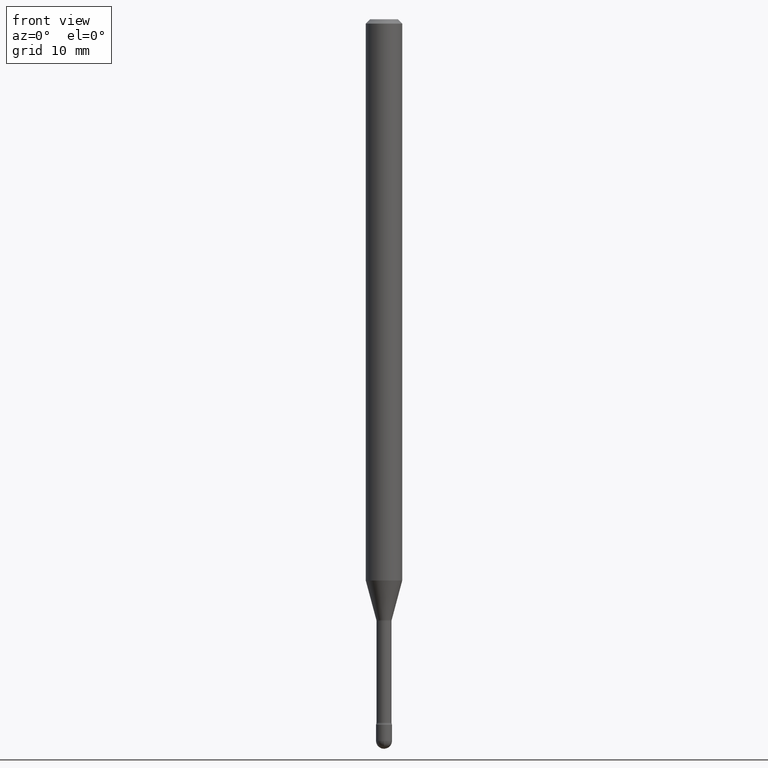
[diagram: clean part render]
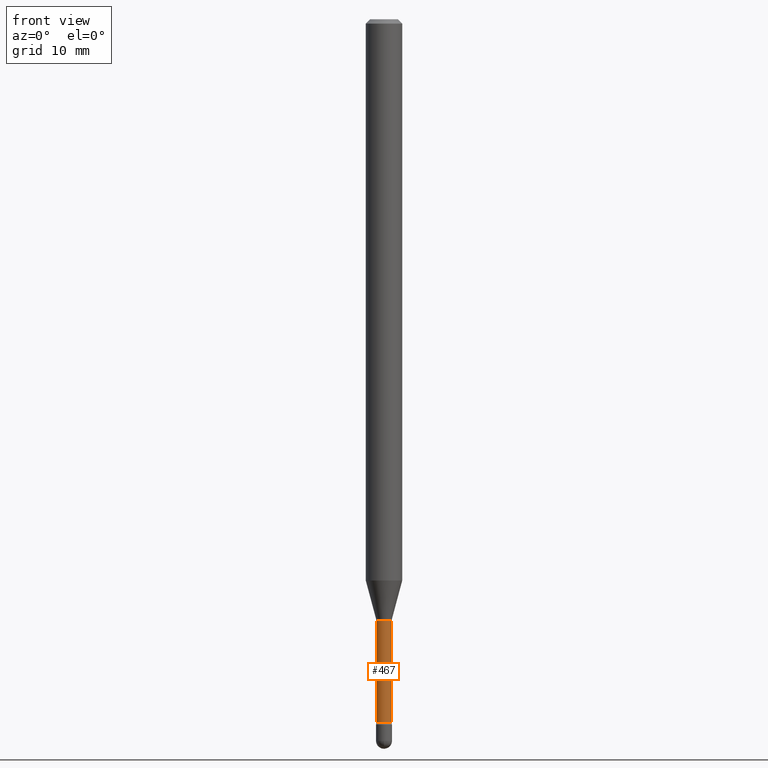
[diagram: same view with one face highlighted and labeled with its STEP entity id]
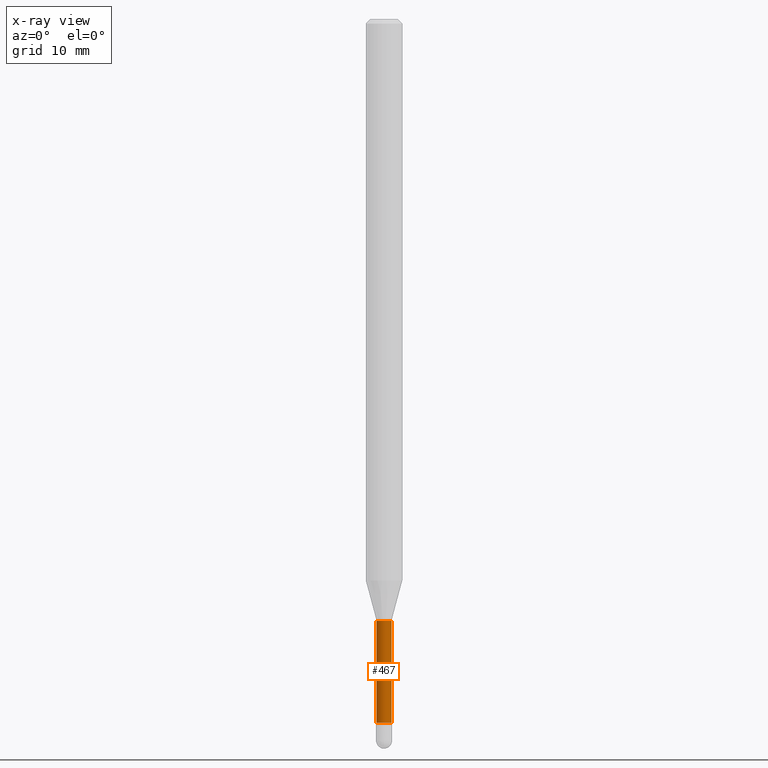
[diagram: x-ray of the same camera — body ghosted, the highlighted face saturated]
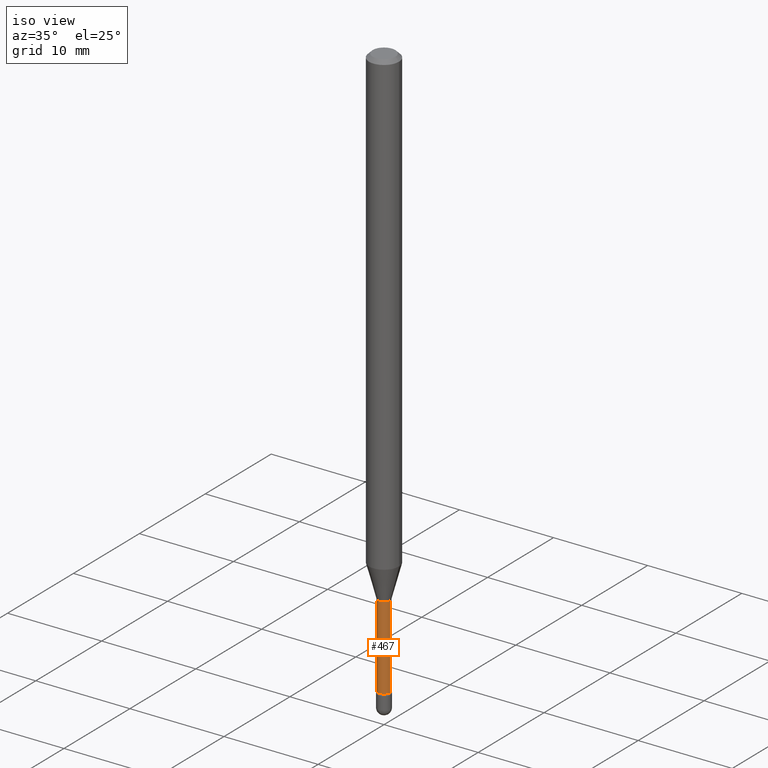
[diagram: same view with one face highlighted and labeled with its STEP entity id]
A machine part, front view. The second image highlights one B-rep face of the part: STEP entity #467.
The next image is the same camera in x-ray: the body ghosted, the highlighted face saturated — about 0% of this face is hidden behind the body in this view.
A second angle (iso view) of the same face is appended — the face is thin or edge-on in the first view.
In plain terms, the highlighted cylindrical surface (edge-blend (fillet) strip) has radius 0.6566 mm, axis along (-0, 0, 1).
Its self-contained STEP definition (entity closure, byte-faithful):
#21 = EDGE_CURVE ( 'NONE', #59, #214, #209, .T. ) ;
#25 = ORIENTED_EDGE ( 'NONE', *, *, #21, .F. ) ;
#36 = CARTESIAN_POINT ( 'NONE',  ( -0.02585000000000006043, -8.237433288748017420E-15, -2.410160592130894397 ) ) ;
#59 = VERTEX_POINT ( 'NONE', #36 ) ;
#61 = AXIS2_PLACEMENT_3D ( 'NONE', #315, #488, #100 ) ;
#74 = FACE_OUTER_BOUND ( 'NONE', #564, .T. ) ;
#92 = CARTESIAN_POINT ( 'NONE',  ( -0.02585000000000002920, 1.836752971939877819E-16, 4.780733988912448306E-16 ) ) ;
#100 = DIRECTION ( 'NONE',  ( 1.000000000000000000, -6.982962677686254089E-15, 0.000000000000000000 ) ) ;
#103 = CIRCLE ( 'NONE', #61, 0.02585000000000000492 ) ;
#118 = VERTEX_POINT ( 'NONE', #432 ) ;
#123 = CARTESIAN_POINT ( 'NONE',  ( 0.02585000000000002920, -1.805095852181885227E-16, 4.780733988912472958E-16 ) ) ;
#168 = DIRECTION ( 'NONE',  ( -2.445468806185136877E-29, 3.491481338843145188E-15, 1.000000000000000000 ) ) ;
#172 = AXIS2_PLACEMENT_3D ( 'NONE', #503, #289, #244 ) ;
#175 = DIRECTION ( 'NONE',  ( -2.445468806185136877E-29, 3.491481338843145188E-15, 1.000000000000000000 ) ) ;
#178 = CARTESIAN_POINT ( 'NONE',  ( 5.893972545952800351E-29, -8.415030731040162465E-15, -2.410160592130894397 ) ) ;
#198 = ORIENTED_EDGE ( 'NONE', *, *, #386, .T. ) ;
#199 = CYLINDRICAL_SURFACE ( 'NONE', #172, 0.02585000000000002920 ) ;
#209 = LINE ( 'NONE', #92, #226 ) ;
#214 = VERTEX_POINT ( 'NONE', #309 ) ;
#226 = VECTOR ( 'NONE', #168, 39.37007874015748143 ) ;
#244 = DIRECTION ( 'NONE',  ( 1.000000000000000000, -6.982962677686266711E-15, 4.927827573631265842E-29 ) ) ;
#245 = EDGE_CURVE ( 'NONE', #214, #362, #103, .T. ) ;
#274 = ORIENTED_EDGE ( 'NONE', *, *, #245, .F. ) ;
#288 = VECTOR ( 'NONE', #175, 39.37007874015748143 ) ;
#289 = DIRECTION ( 'NONE',  ( -2.445468806185136597E-29, 3.491481338843145583E-15, 1.000000000000000000 ) ) ;
#309 = CARTESIAN_POINT ( 'NONE',  ( -0.02585000000000000492, -7.623513314123573261E-15, -2.061974787463811243 ) ) ;
#315 = CARTESIAN_POINT ( 'NONE',  ( 5.042495021882977278E-29, -7.199346491594957995E-15, -2.061974787463811243 ) ) ;
#359 = EDGE_CURVE ( 'NONE', #59, #118, #365, .T. ) ;
#362 = VERTEX_POINT ( 'NONE', #552 ) ;
#365 = CIRCLE ( 'NONE', #511, 0.02585000000000006043 ) ;
#381 = LINE ( 'NONE', #123, #288 ) ;
#386 = EDGE_CURVE ( 'NONE', #118, #362, #381, .T. ) ;
#387 = DIRECTION ( 'NONE',  ( 1.000000000000000000, -6.982962677686277755E-15, 0.000000000000000000 ) ) ;
#399 = ORIENTED_EDGE ( 'NONE', *, *, #359, .T. ) ;
#432 = CARTESIAN_POINT ( 'NONE',  ( 0.02585000000000006043, -8.595540316258353034E-15, -2.410160592130894397 ) ) ;
#467 = ADVANCED_FACE ( 'NONE', ( #74 ), #199, .T. ) ;
#488 = DIRECTION ( 'NONE',  ( -2.445468806185136597E-29, 3.491481338843145583E-15, 1.000000000000000000 ) ) ;
#503 = CARTESIAN_POINT ( 'NONE',  ( -1.169113584055446105E-44, 1.669184350826100908E-30, 4.780733988912460139E-16 ) ) ;
#511 = AXIS2_PLACEMENT_3D ( 'NONE', #178, #523, #387 ) ;
#523 = DIRECTION ( 'NONE',  ( -2.445468806185136597E-29, 3.491481338843145583E-15, 1.000000000000000000 ) ) ;
#552 = CARTESIAN_POINT ( 'NONE',  ( 0.02585000000000000492, -7.379856076813148564E-15, -2.061974787463811243 ) ) ;
#564 = EDGE_LOOP ( 'NONE', ( #25, #399, #198, #274 ) ) ;